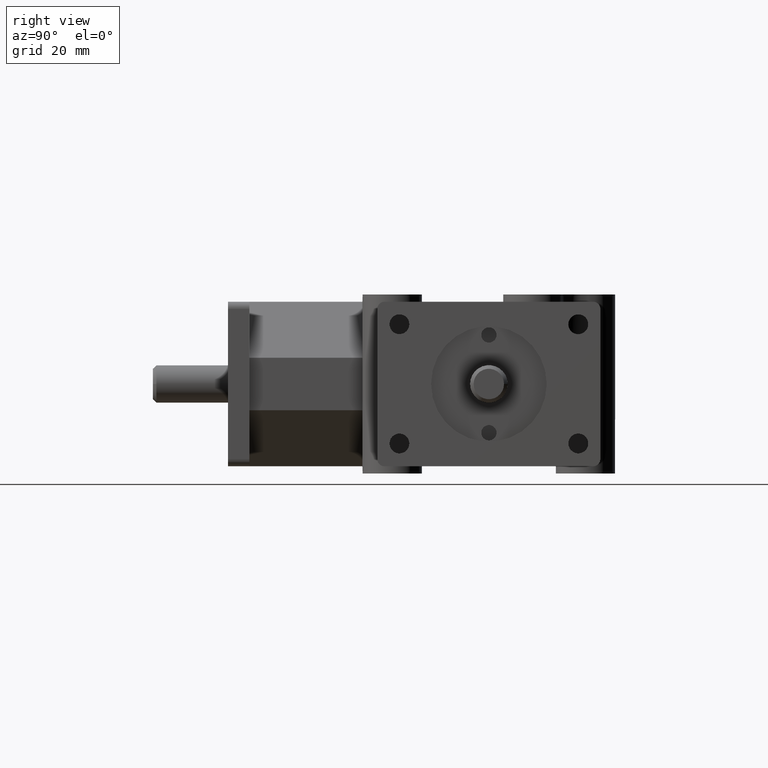
[diagram: clean part render]
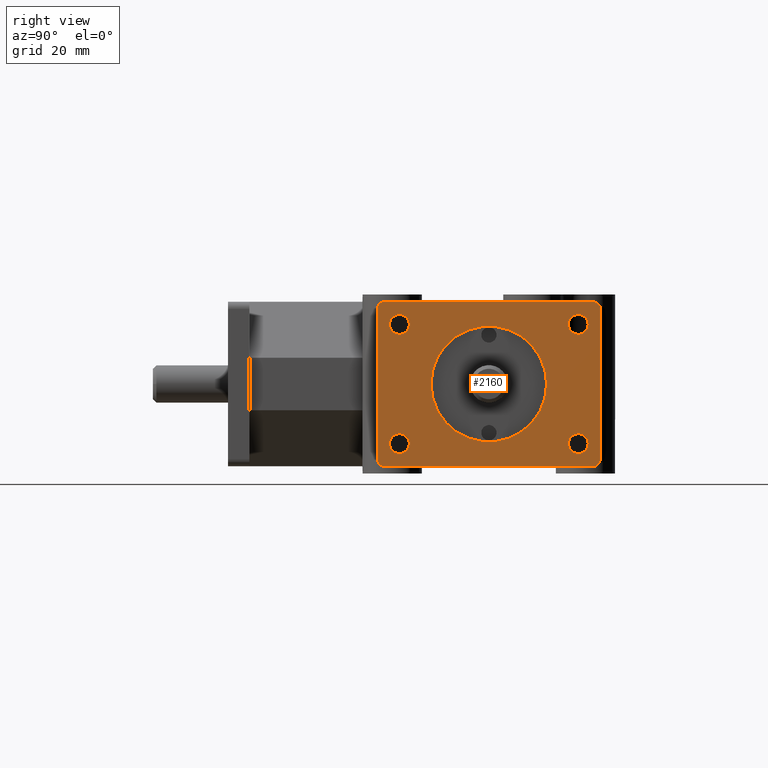
[diagram: same view with one face highlighted and labeled with its STEP entity id]
A machine part, right view. The second image highlights one B-rep face of the part: STEP entity #2160.
In plain terms, the highlighted planar face has unit normal (1, 0, 0).
Its self-contained STEP definition (entity closure, byte-faithful):
#50=FACE_BOUND('',#375,.T.);
#51=FACE_BOUND('',#376,.T.);
#52=FACE_BOUND('',#377,.T.);
#53=FACE_BOUND('',#378,.T.);
#54=FACE_BOUND('',#379,.T.);
#115=PLANE('',#2390);
#222=FACE_OUTER_BOUND('',#374,.T.);
#374=EDGE_LOOP('',(#1871,#1872,#1873,#1874,#1875,#1876,#1877,#1878));
#375=EDGE_LOOP('',(#1879));
#376=EDGE_LOOP('',(#1880));
#377=EDGE_LOOP('',(#1881));
#378=EDGE_LOOP('',(#1882));
#379=EDGE_LOOP('',(#1883));
#446=CIRCLE('',#2260,12.3063);
#466=CIRCLE('',#2292,1.524);
#468=CIRCLE('',#2295,1.524);
#470=CIRCLE('',#2298,1.524);
#472=CIRCLE('',#2301,1.524);
#513=CIRCLE('',#2391,2.1082);
#514=CIRCLE('',#2392,2.1082);
#515=CIRCLE('',#2393,2.1082);
#516=CIRCLE('',#2394,2.1082);
#589=LINE('',#3374,#784);
#617=LINE('',#3433,#812);
#693=LINE('',#3629,#888);
#694=LINE('',#3631,#889);
#784=VECTOR('',#2725,1.);
#812=VECTOR('',#2769,1.);
#888=VECTOR('',#2975,1.);
#889=VECTOR('',#2978,1.);
#947=VERTEX_POINT('',#3194);
#983=VERTEX_POINT('',#3280);
#984=VERTEX_POINT('',#3281);
#987=VERTEX_POINT('',#3289);
#988=VERTEX_POINT('',#3290);
#991=VERTEX_POINT('',#3298);
#992=VERTEX_POINT('',#3299);
#995=VERTEX_POINT('',#3307);
#996=VERTEX_POINT('',#3308);
#1100=VERTEX_POINT('',#3632);
#1101=VERTEX_POINT('',#3634);
#1102=VERTEX_POINT('',#3636);
#1103=VERTEX_POINT('',#3638);
#1162=EDGE_CURVE('',#947,#947,#446,.T.);
#1200=EDGE_CURVE('',#983,#984,#466,.T.);
#1204=EDGE_CURVE('',#987,#988,#468,.T.);
#1208=EDGE_CURVE('',#991,#992,#470,.T.);
#1212=EDGE_CURVE('',#995,#996,#472,.T.);
#1248=EDGE_CURVE('',#987,#992,#589,.T.);
#1282=EDGE_CURVE('',#995,#984,#617,.T.);
#1381=EDGE_CURVE('',#996,#991,#693,.T.);
#1382=EDGE_CURVE('',#983,#988,#694,.T.);
#1383=EDGE_CURVE('',#1100,#1100,#513,.T.);
#1384=EDGE_CURVE('',#1101,#1101,#514,.T.);
#1385=EDGE_CURVE('',#1102,#1102,#515,.T.);
#1386=EDGE_CURVE('',#1103,#1103,#516,.T.);
#1871=ORIENTED_EDGE('',*,*,#1200,.F.);
#1872=ORIENTED_EDGE('',*,*,#1382,.T.);
#1873=ORIENTED_EDGE('',*,*,#1204,.F.);
#1874=ORIENTED_EDGE('',*,*,#1248,.T.);
#1875=ORIENTED_EDGE('',*,*,#1208,.F.);
#1876=ORIENTED_EDGE('',*,*,#1381,.F.);
#1877=ORIENTED_EDGE('',*,*,#1212,.F.);
#1878=ORIENTED_EDGE('',*,*,#1282,.T.);
#1879=ORIENTED_EDGE('',*,*,#1383,.T.);
#1880=ORIENTED_EDGE('',*,*,#1384,.T.);
#1881=ORIENTED_EDGE('',*,*,#1385,.T.);
#1882=ORIENTED_EDGE('',*,*,#1386,.T.);
#1883=ORIENTED_EDGE('',*,*,#1162,.T.);
#2160=ADVANCED_FACE('',(#222,#50,#51,#52,#53,#54),#115,.T.);
#2260=AXIS2_PLACEMENT_3D('',#3195,#2563,#2564);
#2292=AXIS2_PLACEMENT_3D('',#3282,#2645,#2646);
#2295=AXIS2_PLACEMENT_3D('',#3291,#2653,#2654);
#2298=AXIS2_PLACEMENT_3D('',#3300,#2661,#2662);
#2301=AXIS2_PLACEMENT_3D('',#3309,#2669,#2670);
#2390=AXIS2_PLACEMENT_3D('',#3630,#2976,#2977);
#2391=AXIS2_PLACEMENT_3D('',#3633,#2979,#2980);
#2392=AXIS2_PLACEMENT_3D('',#3635,#2981,#2982);
#2393=AXIS2_PLACEMENT_3D('',#3637,#2983,#2984);
#2394=AXIS2_PLACEMENT_3D('',#3639,#2985,#2986);
#2563=DIRECTION('center_axis',(-1.,0.,0.));
#2564=DIRECTION('ref_axis',(0.,1.,0.));
#2645=DIRECTION('center_axis',(-1.,0.,0.));
#2646=DIRECTION('ref_axis',(0.,0.707106781186551,-0.707106781186544));
#2653=DIRECTION('center_axis',(-1.,0.,0.));
#2654=DIRECTION('ref_axis',(0.,0.707106781186551,0.707106781186544));
#2661=DIRECTION('center_axis',(-1.,0.,0.));
#2662=DIRECTION('ref_axis',(0.,-0.707106781186548,0.707106781186548));
#2669=DIRECTION('center_axis',(-1.,0.,0.));
#2670=DIRECTION('ref_axis',(0.,-0.707106781186548,-0.707106781186548));
#2725=DIRECTION('',(0.,-1.,0.));
#2769=DIRECTION('',(0.,1.,0.));
#2975=DIRECTION('',(0.,0.,1.));
#2976=DIRECTION('center_axis',(1.,0.,0.));
#2977=DIRECTION('ref_axis',(0.,-1.,0.));
#2978=DIRECTION('',(0.,0.,1.));
#2979=DIRECTION('center_axis',(-1.,0.,0.));
#2980=DIRECTION('ref_axis',(0.,1.,0.));
#2981=DIRECTION('center_axis',(-1.,0.,0.));
#2982=DIRECTION('ref_axis',(0.,1.,0.));
#2983=DIRECTION('center_axis',(-1.,0.,0.));
#2984=DIRECTION('ref_axis',(0.,1.,0.));
#2985=DIRECTION('center_axis',(-1.,0.,0.));
#2986=DIRECTION('ref_axis',(0.,1.,0.));
#3194=CARTESIAN_POINT('',(41.275,43.2562,1.50708709043471E-15));
#3195=CARTESIAN_POINT('Origin',(41.275,55.5625,0.));
#3280=CARTESIAN_POINT('',(41.275,79.3115,-16.002));
#3281=CARTESIAN_POINT('',(41.275,77.7875,-17.526));
#3282=CARTESIAN_POINT('Origin',(41.275,77.7875,-16.002));
#3289=CARTESIAN_POINT('',(41.275,77.7875,17.526));
#3290=CARTESIAN_POINT('',(41.275,79.3115,16.002));
#3291=CARTESIAN_POINT('Origin',(41.275,77.7875,16.002));
#3298=CARTESIAN_POINT('',(41.275,31.8135,16.002));
#3299=CARTESIAN_POINT('',(41.275,33.3375,17.526));
#3300=CARTESIAN_POINT('Origin',(41.275,33.3375,16.002));
#3307=CARTESIAN_POINT('',(41.275,33.3375,-17.526));
#3308=CARTESIAN_POINT('',(41.275,31.8135,-16.002));
#3309=CARTESIAN_POINT('Origin',(41.275,33.3375,-16.002));
#3374=CARTESIAN_POINT('',(41.275,31.8135,17.526));
#3433=CARTESIAN_POINT('',(41.275,31.8135,-17.526));
#3629=CARTESIAN_POINT('',(41.275,31.8135,0.));
#3630=CARTESIAN_POINT('Origin',(41.275,79.3115,0.));
#3631=CARTESIAN_POINT('',(41.275,79.3115,0.));
#3632=CARTESIAN_POINT('',(41.275,72.5043,12.7));
#3633=CARTESIAN_POINT('Origin',(41.275,74.6125,12.7));
#3634=CARTESIAN_POINT('',(41.275,34.4043,-12.7));
#3635=CARTESIAN_POINT('Origin',(41.275,36.5125,-12.7));
#3636=CARTESIAN_POINT('',(41.275,34.4043,12.7));
#3637=CARTESIAN_POINT('Origin',(41.275,36.5125,12.7));
#3638=CARTESIAN_POINT('',(41.275,72.5043,-12.7));
#3639=CARTESIAN_POINT('Origin',(41.275,74.6125,-12.7));